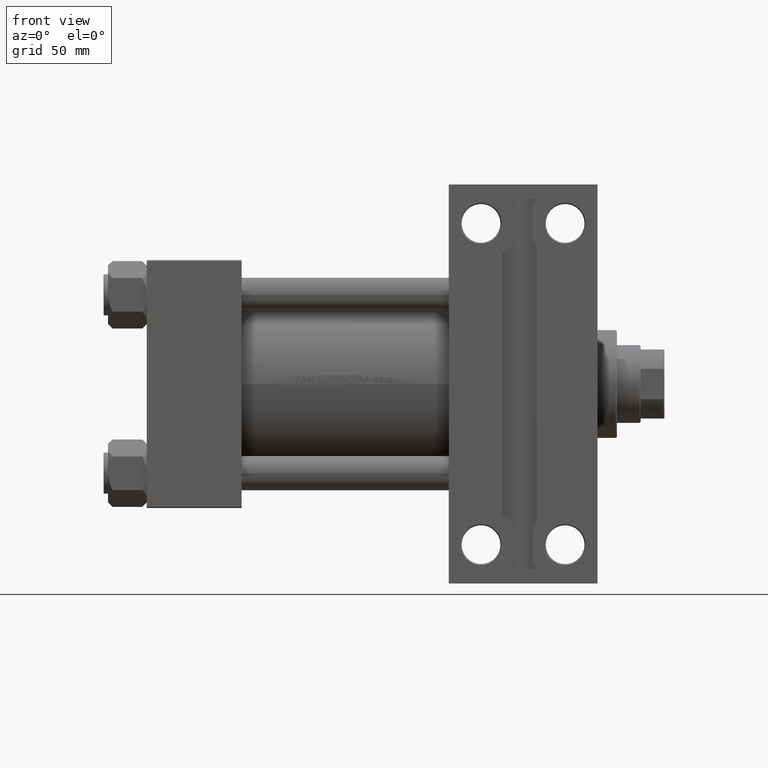
[diagram: clean part render]
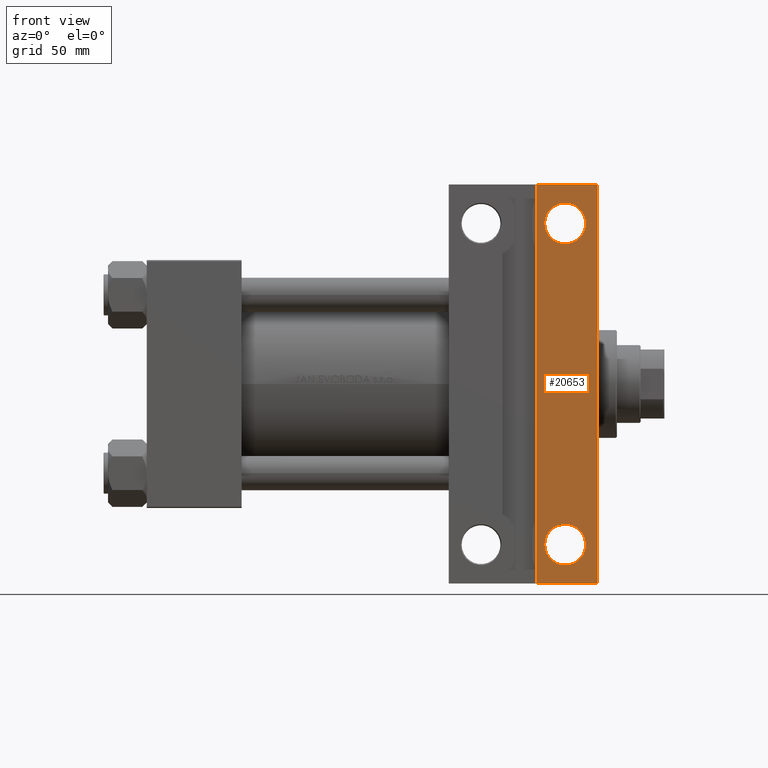
[diagram: same view with one face highlighted and labeled with its STEP entity id]
A machine part, front view. The second image highlights one B-rep face of the part: STEP entity #20653.
In plain terms, the highlighted planar face has unit normal (0, -1, -0).
Its self-contained STEP definition (entity closure, byte-faithful):
#717 = AXIS2_PLACEMENT_3D ( 'NONE', #31364, #20165, #1716 ) ;
#789 = CARTESIAN_POINT ( 'NONE',  ( 194.0000000000000000, -74.50000000000000000, -57.49999999999997868 ) ) ;
#1716 = DIRECTION ( 'NONE',  ( 0.000000000000000000, 1.000000000000000000, 0.000000000000000000 ) ) ;
#3364 = CARTESIAN_POINT ( 'NONE',  ( 140.0000000000000000, -92.50000000000002842, -57.49999999999997158 ) ) ;
#4244 = CARTESIAN_POINT ( 'NONE',  ( 209.0000000000000284, 57.50000000000000000, -57.49999999999996447 ) ) ;
#4870 = CARTESIAN_POINT ( 'NONE',  ( 194.0000000000000000, 74.50000000000000000, -57.49999999999996447 ) ) ;
#5637 = EDGE_CURVE ( 'NONE', #32381, #12269, #33804, .T. ) ;
#6523 = DIRECTION ( 'NONE',  ( -1.000000000000000000, -0.000000000000000000, -0.000000000000000000 ) ) ;
#7440 = ORIENTED_EDGE ( 'NONE', *, *, #37774, .T. ) ;
#7474 = AXIS2_PLACEMENT_3D ( 'NONE', #16917, #20802, #46871 ) ;
#8009 = ORIENTED_EDGE ( 'NONE', *, *, #11026, .T. ) ;
#8207 = ORIENTED_EDGE ( 'NONE', *, *, #44854, .F. ) ;
#8846 = FACE_BOUND ( 'NONE', #37850, .T. ) ;
#8857 = ORIENTED_EDGE ( 'NONE', *, *, #24564, .T. ) ;
#8891 = CARTESIAN_POINT ( 'NONE',  ( 203.4995000000000118, 74.50000000000000000, -57.49999999999996447 ) ) ;
#9395 = VECTOR ( 'NONE', #36091, 1000.000000000000000 ) ;
#9693 = EDGE_CURVE ( 'NONE', #20057, #45736, #17019, .T. ) ;
#9767 = VECTOR ( 'NONE', #17976, 1000.000000000000000 ) ;
#10524 = AXIS2_PLACEMENT_3D ( 'NONE', #789, #15590, #30180 ) ;
#10666 = EDGE_CURVE ( 'NONE', #47625, #36331, #14421, .T. ) ;
#11026 = EDGE_CURVE ( 'NONE', #12269, #32381, #15984, .T. ) ;
#11990 = DIRECTION ( 'NONE',  ( 0.000000000000000000, 1.000000000000000000, 1.206764157201257291E-16 ) ) ;
#12094 = CARTESIAN_POINT ( 'NONE',  ( 140.0000000000000284, 92.50000000000000000, -57.49999999999997158 ) ) ;
#12269 = VERTEX_POINT ( 'NONE', #40143 ) ;
#13421 = CARTESIAN_POINT ( 'NONE',  ( 181.0000000000000568, 92.50000000000000000, -57.49999999999997158 ) ) ;
#13758 = VECTOR ( 'NONE', #45939, 1000.000000000000000 ) ;
#14421 = CIRCLE ( 'NONE', #16745, 9.499499999999994060 ) ;
#15590 = DIRECTION ( 'NONE',  ( -0.000000000000000000, -1.206764157201257291E-16, 1.000000000000000000 ) ) ;
#15634 = FACE_BOUND ( 'NONE', #25005, .T. ) ;
#15984 = CIRCLE ( 'NONE', #7474, 9.499500000000077549 ) ;
#16745 = AXIS2_PLACEMENT_3D ( 'NONE', #4870, #45748, #42817 ) ;
#16917 = CARTESIAN_POINT ( 'NONE',  ( 194.0000000000000000, -74.50000000000000000, -57.49999999999997868 ) ) ;
#17019 = LINE ( 'NONE', #20901, #9767 ) ;
#17976 = DIRECTION ( 'NONE',  ( 0.000000000000000000, -1.000000000000000000, -1.206764157201257291E-16 ) ) ;
#19492 = CARTESIAN_POINT ( 'NONE',  ( 209.0000000000000568, 92.50000000000000000, -57.49999999999997158 ) ) ;
#20057 = VERTEX_POINT ( 'NONE', #19492 ) ;
#20165 = DIRECTION ( 'NONE',  ( -0.000000000000000000, -1.206764157201257291E-16, 1.000000000000000000 ) ) ;
#20653 = ADVANCED_FACE ( 'NONE', ( #27047, #8846, #15634 ), #45353, .T. ) ;
#20802 = DIRECTION ( 'NONE',  ( -0.000000000000000000, -1.206764157201257291E-16, 1.000000000000000000 ) ) ;
#20839 = VERTEX_POINT ( 'NONE', #13421 ) ;
#20901 = CARTESIAN_POINT ( 'NONE',  ( 209.0000000000000284, 57.50000000000000000, -57.49999999999996447 ) ) ;
#21426 = ORIENTED_EDGE ( 'NONE', *, *, #9693, .T. ) ;
#21640 = CIRCLE ( 'NONE', #717, 9.499499999999994060 ) ;
#21974 = VERTEX_POINT ( 'NONE', #38753 ) ;
#24291 = ORIENTED_EDGE ( 'NONE', *, *, #33504, .T. ) ;
#24564 = EDGE_CURVE ( 'NONE', #45736, #21974, #40075, .T. ) ;
#24778 = VECTOR ( 'NONE', #6523, 1000.000000000000000 ) ;
#25005 = EDGE_LOOP ( 'NONE', ( #28727, #7440 ) ) ;
#25125 = LINE ( 'NONE', #44154, #9395 ) ;
#26595 = CARTESIAN_POINT ( 'NONE',  ( 184.5005000000000166, 74.50000000000000000, -57.49999999999996447 ) ) ;
#27047 = FACE_OUTER_BOUND ( 'NONE', #44172, .T. ) ;
#28727 = ORIENTED_EDGE ( 'NONE', *, *, #10666, .T. ) ;
#30180 = DIRECTION ( 'NONE',  ( 0.000000000000000000, 1.000000000000000000, 0.000000000000000000 ) ) ;
#31364 = CARTESIAN_POINT ( 'NONE',  ( 194.0000000000000000, 74.50000000000000000, -57.49999999999996447 ) ) ;
#32381 = VERTEX_POINT ( 'NONE', #44302 ) ;
#33348 = AXIS2_PLACEMENT_3D ( 'NONE', #4244, #38270, #11990 ) ;
#33371 = ORIENTED_EDGE ( 'NONE', *, *, #5637, .T. ) ;
#33504 = EDGE_CURVE ( 'NONE', #20839, #20057, #34459, .T. ) ;
#33804 = CIRCLE ( 'NONE', #10524, 9.499500000000077549 ) ;
#34459 = LINE ( 'NONE', #12094, #13758 ) ;
#36091 = DIRECTION ( 'NONE',  ( -0.000000000000000000, -1.000000000000000000, -0.000000000000000000 ) ) ;
#36331 = VERTEX_POINT ( 'NONE', #8891 ) ;
#37774 = EDGE_CURVE ( 'NONE', #36331, #47625, #21640, .T. ) ;
#37850 = EDGE_LOOP ( 'NONE', ( #33371, #8009 ) ) ;
#38270 = DIRECTION ( 'NONE',  ( 0.000000000000000000, 1.206764157201257291E-16, -1.000000000000000000 ) ) ;
#38753 = CARTESIAN_POINT ( 'NONE',  ( 181.0000000000000568, -92.50000000000001421, -57.49999999999997158 ) ) ;
#39227 = CARTESIAN_POINT ( 'NONE',  ( 209.0000000000000284, -92.50000000000002842, -57.49999999999997158 ) ) ;
#40075 = LINE ( 'NONE', #3364, #24778 ) ;
#40143 = CARTESIAN_POINT ( 'NONE',  ( 203.4995000000000971, -74.50000000000000000, -57.49999999999997868 ) ) ;
#42817 = DIRECTION ( 'NONE',  ( 0.000000000000000000, 1.000000000000000000, 0.000000000000000000 ) ) ;
#44154 = CARTESIAN_POINT ( 'NONE',  ( 181.0000000000000568, -92.50000000000001421, -57.49999999999997158 ) ) ;
#44172 = EDGE_LOOP ( 'NONE', ( #8207, #24291, #21426, #8857 ) ) ;
#44302 = CARTESIAN_POINT ( 'NONE',  ( 184.5004999999999313, -74.50000000000000000, -57.49999999999997868 ) ) ;
#44854 = EDGE_CURVE ( 'NONE', #20839, #21974, #25125, .T. ) ;
#45353 = PLANE ( 'NONE',  #33348 ) ;
#45736 = VERTEX_POINT ( 'NONE', #39227 ) ;
#45748 = DIRECTION ( 'NONE',  ( -0.000000000000000000, -1.206764157201257291E-16, 1.000000000000000000 ) ) ;
#45939 = DIRECTION ( 'NONE',  ( 1.000000000000000000, 0.000000000000000000, 0.000000000000000000 ) ) ;
#46871 = DIRECTION ( 'NONE',  ( 0.000000000000000000, 1.000000000000000000, 0.000000000000000000 ) ) ;
#47625 = VERTEX_POINT ( 'NONE', #26595 ) ;